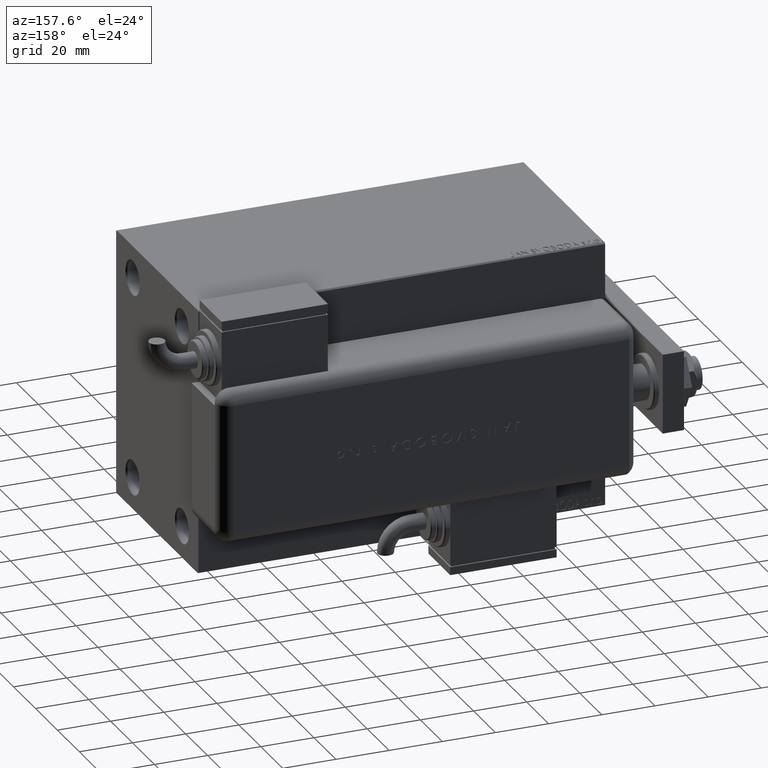
[diagram: clean part render]
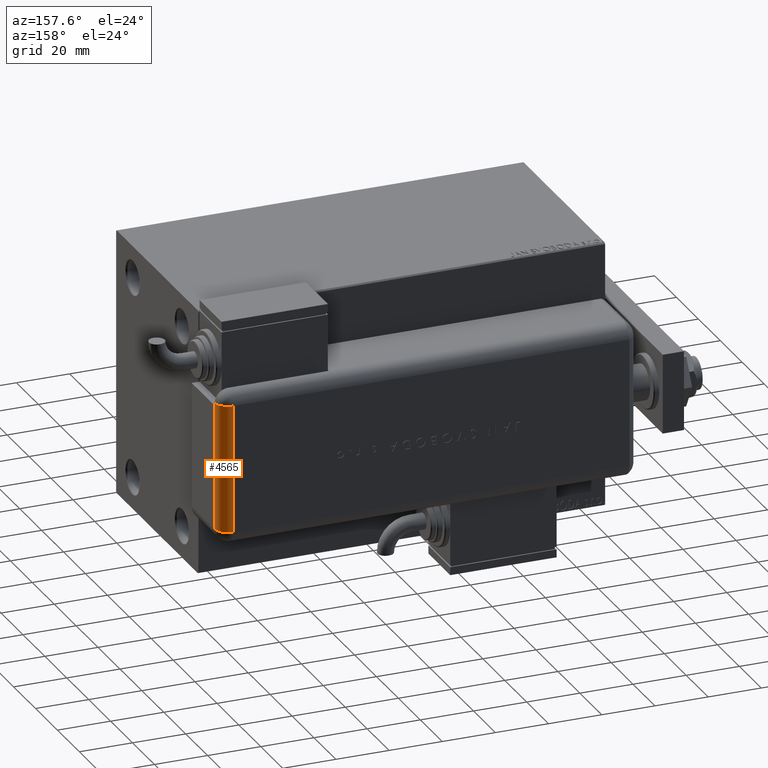
[diagram: same view with one face highlighted and labeled with its STEP entity id]
A machine part, auxiliary view. The second image highlights one B-rep face of the part: STEP entity #4565.
In plain terms, the highlighted cylindrical surface (edge-blend (fillet) strip) has radius 5 mm, axis along (0, 0, 1).
Its self-contained STEP definition (entity closure, byte-faithful):
#3365 = VECTOR ( 'NONE', #48937, 1000.000000000000000 ) ;
#3740 = ORIENTED_EDGE ( 'NONE', *, *, #41584, .T. ) ;
#4565 = ADVANCED_FACE ( 'NONE', ( #27040 ), #17308, .T. ) ;
#5290 = AXIS2_PLACEMENT_3D ( 'NONE', #60073, #13179, #14094 ) ;
#6094 = DIRECTION ( 'NONE',  ( 1.000000000000000000, 0.000000000000000000, 0.000000000000000000 ) ) ;
#7576 = ORIENTED_EDGE ( 'NONE', *, *, #31654, .F. ) ;
#11765 = ORIENTED_EDGE ( 'NONE', *, *, #31516, .F. ) ;
#13179 = DIRECTION ( 'NONE',  ( 1.000000000000000000, -0.000000000000000000, 0.000000000000000000 ) ) ;
#13366 = CIRCLE ( 'NONE', #16290, 5.000000000000000000 ) ;
#13616 = DIRECTION ( 'NONE',  ( 1.000000000000000000, 0.000000000000000000, 0.000000000000000000 ) ) ;
#14094 = DIRECTION ( 'NONE',  ( 0.000000000000000000, 0.000000000000000000, -1.000000000000000000 ) ) ;
#15845 = LINE ( 'NONE', #24683, #18193 ) ;
#16290 = AXIS2_PLACEMENT_3D ( 'NONE', #48632, #25487, #44061 ) ;
#17308 = CYLINDRICAL_SURFACE ( 'NONE', #58536, 5.000000000000000000 ) ;
#18140 = DIRECTION ( 'NONE',  ( 0.000000000000000000, 0.000000000000000000, -1.000000000000000000 ) ) ;
#18193 = VECTOR ( 'NONE', #6094, 1000.000000000000000 ) ;
#20723 = EDGE_CURVE ( 'NONE', #26368, #57612, #15845, .T. ) ;
#20768 = EDGE_LOOP ( 'NONE', ( #35212, #3740, #11765, #44884, #44415, #7576 ) ) ;
#20931 = LINE ( 'NONE', #29759, #3365 ) ;
#23691 = CARTESIAN_POINT ( 'NONE',  ( 23.99999999999999289, 21.00000000000000000, 0.004001601281283882067 ) ) ;
#24271 = CARTESIAN_POINT ( 'NONE',  ( 23.00000000000000000, 21.00000000000000000, 0.004001601281286050471 ) ) ;
#24683 = CARTESIAN_POINT ( 'NONE',  ( -28.99999999999999645, 21.00000000000000000, 0.004001601281286050471 ) ) ;
#25487 = DIRECTION ( 'NONE',  ( -1.000000000000000000, -0.000000000000000000, 0.000000000000000000 ) ) ;
#25730 = CIRCLE ( 'NONE', #5290, 5.000000000000000000 ) ;
#25944 = CARTESIAN_POINT ( 'NONE',  ( -23.99999999999999645, 25.79999999999998295, 5.000000000000004441 ) ) ;
#26325 = VERTEX_POINT ( 'NONE', #48616 ) ;
#26368 = VERTEX_POINT ( 'NONE', #24271 ) ;
#27040 = FACE_OUTER_BOUND ( 'NONE', #20768, .T. ) ;
#28695 = AXIS2_PLACEMENT_3D ( 'NONE', #45851, #41601, #18140 ) ;
#29759 = CARTESIAN_POINT ( 'NONE',  ( 23.99999999999999289, 20.79999999999998295, 0.000000000000000000 ) ) ;
#30500 = DIRECTION ( 'NONE',  ( -1.000000000000000000, 0.000000000000000000, 0.000000000000000000 ) ) ;
#30824 = EDGE_CURVE ( 'NONE', #53693, #26325, #25730, .T. ) ;
#31516 = EDGE_CURVE ( 'NONE', #53693, #49460, #20931, .T. ) ;
#31654 = EDGE_CURVE ( 'NONE', #57612, #54500, #43301, .T. ) ;
#32196 = DIRECTION ( 'NONE',  ( 0.000000000000000000, 0.000000000000000000, -1.000000000000000000 ) ) ;
#34472 = EDGE_CURVE ( 'NONE', #54500, #26325, #40559, .T. ) ;
#35212 = ORIENTED_EDGE ( 'NONE', *, *, #20723, .F. ) ;
#38123 = CARTESIAN_POINT ( 'NONE',  ( -23.99999999999999645, 20.79999999999998295, 0.000000000000000000 ) ) ;
#40559 = LINE ( 'NONE', #25944, #56040 ) ;
#41584 = EDGE_CURVE ( 'NONE', #26368, #49460, #13366, .T. ) ;
#41601 = DIRECTION ( 'NONE',  ( 1.000000000000000000, -0.000000000000000000, 0.000000000000000000 ) ) ;
#43301 = CIRCLE ( 'NONE', #28695, 5.000000000000000000 ) ;
#44061 = DIRECTION ( 'NONE',  ( 0.000000000000000000, 1.526556658859590243E-14, -1.000000000000000000 ) ) ;
#44415 = ORIENTED_EDGE ( 'NONE', *, *, #34472, .F. ) ;
#44884 = ORIENTED_EDGE ( 'NONE', *, *, #30824, .T. ) ;
#45851 = CARTESIAN_POINT ( 'NONE',  ( 23.99999999999999289, 20.79999999999998295, 5.000000000000000000 ) ) ;
#46662 = CARTESIAN_POINT ( 'NONE',  ( 23.99999999999999289, 25.79999999999998295, 5.000000000000004441 ) ) ;
#48616 = CARTESIAN_POINT ( 'NONE',  ( -23.99999999999999645, 25.79999999999998295, 5.000000000000004441 ) ) ;
#48632 = CARTESIAN_POINT ( 'NONE',  ( 23.00000000000000000, 20.79999999999998295, 5.000000000000004441 ) ) ;
#48937 = DIRECTION ( 'NONE',  ( 1.000000000000000000, -0.000000000000000000, -0.000000000000000000 ) ) ;
#49460 = VERTEX_POINT ( 'NONE', #50699 ) ;
#50699 = CARTESIAN_POINT ( 'NONE',  ( 23.00000000000000000, 20.79999999999998295, 1.734723475976807094E-15 ) ) ;
#53693 = VERTEX_POINT ( 'NONE', #38123 ) ;
#54500 = VERTEX_POINT ( 'NONE', #46662 ) ;
#55048 = CARTESIAN_POINT ( 'NONE',  ( -28.99999999999999645, 20.79999999999998295, 5.000000000000004441 ) ) ;
#56040 = VECTOR ( 'NONE', #30500, 1000.000000000000000 ) ;
#57612 = VERTEX_POINT ( 'NONE', #23691 ) ;
#58536 = AXIS2_PLACEMENT_3D ( 'NONE', #55048, #13616, #32196 ) ;
#60073 = CARTESIAN_POINT ( 'NONE',  ( -23.99999999999999645, 20.79999999999998295, 5.000000000000002665 ) ) ;